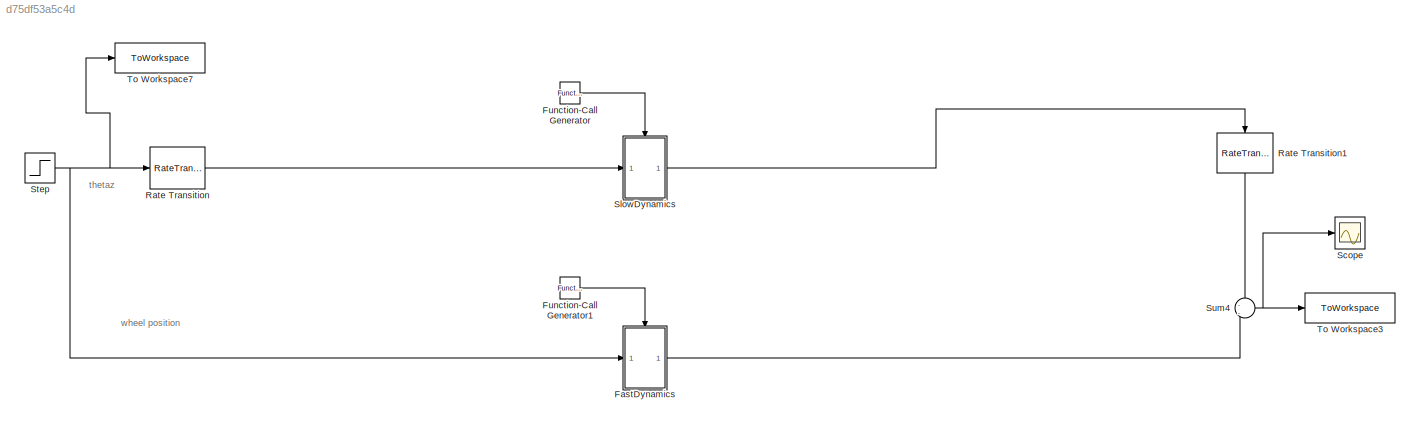
MODEL slx_d75df53a5c4d
KIND model
CONFIG AbsTol = auto
CONFIG EnableMultiTasking = on
CONFIG FixedStep = .002
CONFIG MaxStep = auto
CONFIG MinStep = auto
CONFIG RelTol = 1e-3
CONFIG SampleTimeConstraint = Unconstrained
CONFIG SolverName = ode3
CONFIG StartTime = 0.0
CONFIG StopTime = tfinal
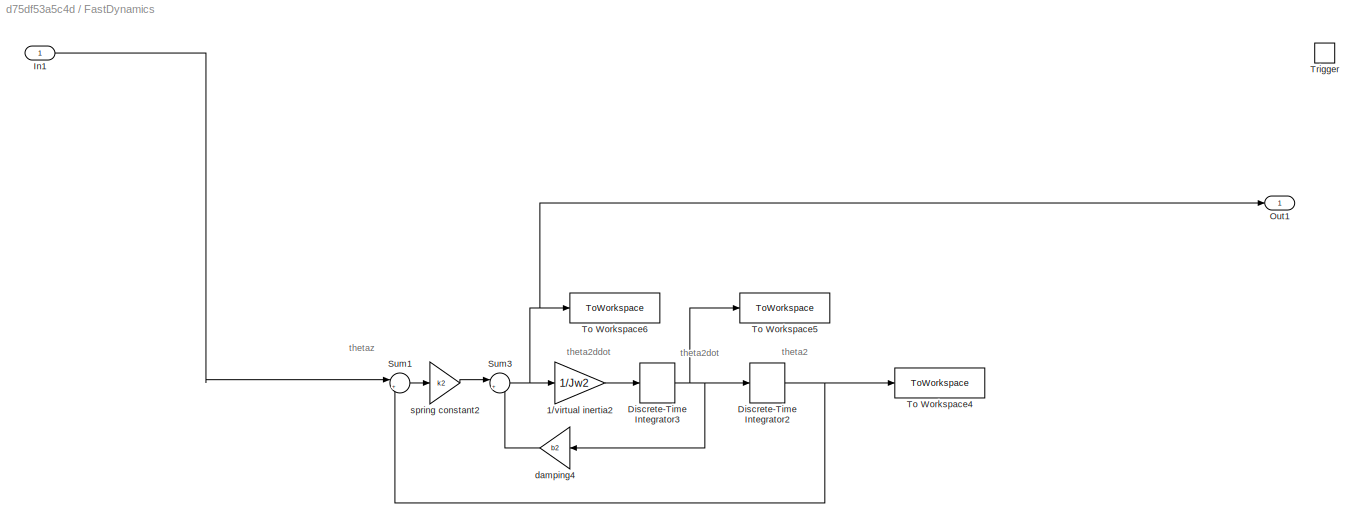
BLOCK [SubSystem] FastDynamics
  Ports = [1, 1, 0, 1]
  RequestExecContextInheritance = off
BLOCK [Gain] FastDynamics/1//virtual inertia2
  Gain = 1/Jw2
  OutDataTypeStr = Inherit: Same as input
  ParamDataTypeStr = Inherit: Same as input
  SaturateOnIntegerOverflow = on
BLOCK [DiscreteIntegrator] FastDynamics/Discrete-Time Integrator2
  ICPrevOutput = DiscIntNeverNeededParam
  ICPrevScaledInput = DiscIntNeverNeededParam
  Ports = [1, 1]
  SampleTime = -1
BLOCK [DiscreteIntegrator] FastDynamics/Discrete-Time Integrator3
  ICPrevOutput = DiscIntNeverNeededParam
  ICPrevScaledInput = DiscIntNeverNeededParam
  Ports = [1, 1]
  SampleTime = -1
BLOCK [Inport] FastDynamics/In1
BLOCK [Outport] FastDynamics/Out1
BLOCK [Sum] FastDynamics/Sum1
  InputSameDT = on
  Inputs = |+-
  OutDataTypeStr = Inherit: Same as first input
  Ports = [2, 1]
  SaturateOnIntegerOverflow = on
BLOCK [Sum] FastDynamics/Sum3
  InputSameDT = on
  Inputs = |+-
  OutDataTypeStr = Inherit: Same as first input
  Ports = [2, 1]
  SaturateOnIntegerOverflow = on
BLOCK [ToWorkspace] FastDynamics/To Workspace4
  FixptAsFi = on
  MaxDataPoints = inf
  Ports = [1]
  SampleTime = -1
  SaveFormat = Timeseries
  VariableName = theta2
BLOCK [ToWorkspace] FastDynamics/To Workspace5
  FixptAsFi = on
  MaxDataPoints = inf
  Ports = [1]
  SampleTime = -1
  SaveFormat = Timeseries
  VariableName = theta2dot
BLOCK [ToWorkspace] FastDynamics/To Workspace6
  FixptAsFi = on
  MaxDataPoints = inf
  Ports = [1]
  SampleTime = -1
  SaveFormat = Timeseries
  VariableName = wheel2_torque
BLOCK [TriggerPort] FastDynamics/Trigger
  PortDimensions = 1
  Ports = []
  StatesWhenEnabling = held
  TriggerType = function-call
  VariantControl = (inherit)
BLOCK [Gain] FastDynamics/damping4
  Gain = b2
  OutDataTypeStr = Inherit: Same as input
  ParamDataTypeStr = Inherit: Same as input
  SaturateOnIntegerOverflow = on
BLOCK [Gain] FastDynamics/spring constant2
  Gain = k2
  OutDataTypeStr = Inherit: Same as input
  ParamDataTypeStr = Inherit: Same as input
  SaturateOnIntegerOverflow = on
BLOCK [Reference] Function-Call Generator  REF=simulink/Ports &
Subsystems/Function-Call
Generator
  Ports = [0, 1]
  SourceBlock = simulink/Ports &\nSubsystems/Function-Call\nGenerator
  SourceProductBaseCode = SL
  SourceType = Function-Call Generator
BLOCK [Reference] Function-Call Generator1  REF=simulink/Ports &
Subsystems/Function-Call
Generator
  Ports = [0, 1]
  SourceBlock = simulink/Ports &\nSubsystems/Function-Call\nGenerator
  SourceProductBaseCode = SL
  SourceType = Function-Call Generator
BLOCK [RateTransition] Rate Transition
BLOCK [RateTransition] Rate Transition1
  NameLocation = right
BLOCK [Scope] Scope
  Floating = off
  NumInputPorts = 1
  Ports = [1]
  ScopeSpecificationString = Simulink.scopes.TimeScopeBlockCfg('CurrentConfiguration', extmgr.ConfigurationSet(extmgr.Configuration('Core','General UI',true),extmgr.Configuration('Core','Source UI',true),extmgr.Configuration('Sources','WiredSimulink',true),extmgr.Configuration('Visuals','Time Domain',true,'SerializedDisplays',{struct('MinYLimReal','-1000','MaxYLimReal','1000','YLabelReal','','MinYLimMag','490.04138','MaxYLimM...<+1397ch>
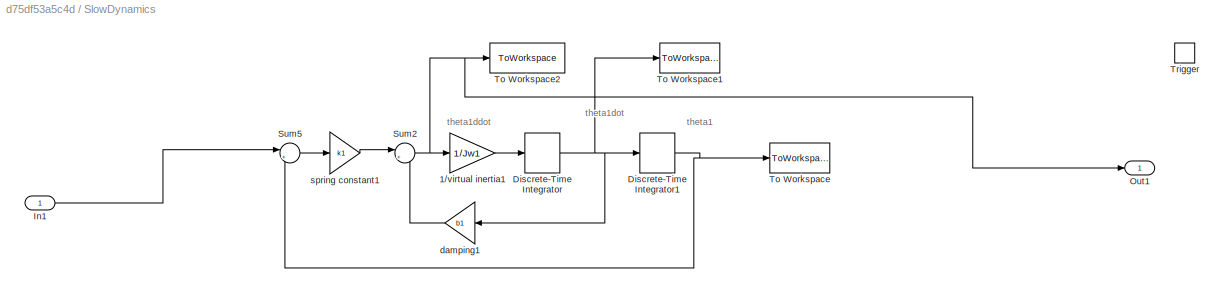
BLOCK [SubSystem] SlowDynamics
  Ports = [1, 1, 0, 1]
  RequestExecContextInheritance = off
BLOCK [Gain] SlowDynamics/1//virtual inertia1
  Gain = 1/Jw1
  OutDataTypeStr = Inherit: Same as input
  ParamDataTypeStr = Inherit: Same as input
  SaturateOnIntegerOverflow = on
BLOCK [DiscreteIntegrator] SlowDynamics/Discrete-Time Integrator
  ICPrevOutput = DiscIntNeverNeededParam
  ICPrevScaledInput = DiscIntNeverNeededParam
  Ports = [1, 1]
  SampleTime = -1
BLOCK [DiscreteIntegrator] SlowDynamics/Discrete-Time Integrator1
  ICPrevOutput = DiscIntNeverNeededParam
  ICPrevScaledInput = DiscIntNeverNeededParam
  Ports = [1, 1]
  SampleTime = -1
BLOCK [Inport] SlowDynamics/In1
BLOCK [Outport] SlowDynamics/Out1
BLOCK [Sum] SlowDynamics/Sum2
  InputSameDT = on
  Inputs = |+-
  OutDataTypeStr = Inherit: Same as first input
  Ports = [2, 1]
  SaturateOnIntegerOverflow = on
BLOCK [Sum] SlowDynamics/Sum5
  InputSameDT = on
  Inputs = |+-
  OutDataTypeStr = Inherit: Same as first input
  Ports = [2, 1]
  SaturateOnIntegerOverflow = on
BLOCK [ToWorkspace] SlowDynamics/To Workspace
  MaxDataPoints = inf
  Ports = [1]
  SampleTime = -1
  SaveFormat = Timeseries
  VariableName = theta1
BLOCK [ToWorkspace] SlowDynamics/To Workspace1
  MaxDataPoints = inf
  Ports = [1]
  SampleTime = -1
  SaveFormat = Timeseries
  VariableName = theta1dot
BLOCK [ToWorkspace] SlowDynamics/To Workspace2
  MaxDataPoints = inf
  Ports = [1]
  SampleTime = -1
  SaveFormat = Timeseries
  VariableName = wheel1_torque
BLOCK [TriggerPort] SlowDynamics/Trigger
  PortDimensions = 1
  Ports = []
  StatesWhenEnabling = held
  TriggerType = function-call
  VariantControl = (inherit)
BLOCK [Gain] SlowDynamics/damping1
  Gain = b1
  OutDataTypeStr = Inherit: Same as input
  ParamDataTypeStr = Inherit: Same as input
  SaturateOnIntegerOverflow = on
BLOCK [Gain] SlowDynamics/spring constant1
  Gain = k1
  OutDataTypeStr = Inherit: Same as input
  ParamDataTypeStr = Inherit: Same as input
  SaturateOnIntegerOverflow = on
BLOCK [Step] Step
  After = Theta_z_0
  SampleTime = T2
  Time = step_time
BLOCK [Sum] Sum4
  InputSameDT = on
  Inputs = -|-
  OutDataTypeStr = Inherit: Same as first input
  Ports = [2, 1]
  SaturateOnIntegerOverflow = on
BLOCK [ToWorkspace] To Workspace3
  FixptAsFi = on
  MaxDataPoints = inf
  Ports = [1]
  SampleTime = -1
  SaveFormat = Timeseries
  VariableName = reaction_torque
BLOCK [ToWorkspace] To Workspace7
  FixptAsFi = on
  MaxDataPoints = inf
  Ports = [1]
  SampleTime = -1
  SaveFormat = Timeseries
  VariableName = haptic_wheel_position
ANNOTATION (root): thetaz
ANNOTATION (root): wheel position
ANNOTATION FastDynamics: theta2
ANNOTATION FastDynamics: theta2ddot
ANNOTATION FastDynamics: theta2dot
ANNOTATION FastDynamics: thetaz
ANNOTATION SlowDynamics: theta1
ANNOTATION SlowDynamics: theta1ddot
ANNOTATION SlowDynamics: theta1dot
LINE FastDynamics/1//virtual inertia2:1 -> FastDynamics/Discrete-Time Integrator3:1
NET FastDynamics/Discrete-Time Integrator2:1 -> FastDynamics/Sum1:2, FastDynamics/To Workspace4:1
NET FastDynamics/Discrete-Time Integrator3:1 -> FastDynamics/Discrete-Time Integrator2:1, FastDynamics/To Workspace5:1, FastDynamics/damping4:1
LINE FastDynamics/In1:1 -> FastDynamics/Sum1:1
LINE FastDynamics/Sum1:1 -> FastDynamics/spring constant2:1
NET FastDynamics/Sum3:1 -> FastDynamics/1//virtual inertia2:1, FastDynamics/Out1:1, FastDynamics/To Workspace6:1
LINE FastDynamics/damping4:1 -> FastDynamics/Sum3:2
LINE FastDynamics/spring constant2:1 -> FastDynamics/Sum3:1
LINE FastDynamics:1 -> Sum4:2
LINE Function-Call Generator1:1 -> FastDynamics:trigger
LINE Function-Call Generator:1 -> SlowDynamics:trigger
LINE Rate Transition1:1 -> Sum4:1
LINE Rate Transition:1 -> SlowDynamics:1
LINE SlowDynamics/1//virtual inertia1:1 -> SlowDynamics/Discrete-Time Integrator:1
NET SlowDynamics/Discrete-Time Integrator1:1 -> SlowDynamics/Sum5:2, SlowDynamics/To Workspace:1
NET SlowDynamics/Discrete-Time Integrator:1 -> SlowDynamics/Discrete-Time Integrator1:1, SlowDynamics/To Workspace1:1, SlowDynamics/damping1:1
LINE SlowDynamics/In1:1 -> SlowDynamics/Sum5:1
NET SlowDynamics/Sum2:1 -> SlowDynamics/1//virtual inertia1:1, SlowDynamics/Out1:1, SlowDynamics/To Workspace2:1
LINE SlowDynamics/Sum5:1 -> SlowDynamics/spring constant1:1
LINE SlowDynamics/damping1:1 -> SlowDynamics/Sum2:2
LINE SlowDynamics/spring constant1:1 -> SlowDynamics/Sum2:1
LINE SlowDynamics:1 -> Rate Transition1:1
NET Step:1 -> FastDynamics:1, Rate Transition:1, To Workspace7:1
NET Sum4:1 -> Scope:1, To Workspace3:1
note: NET lines group one-source signal fan-out (src -> all destinations, sorted); 1:1 wires keep LINE
